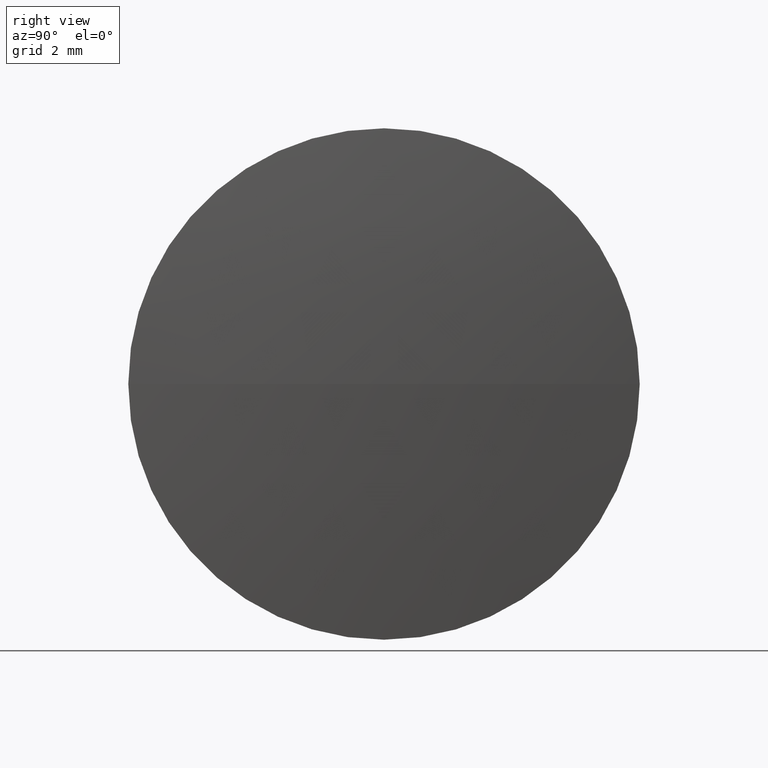
[diagram: clean part render]
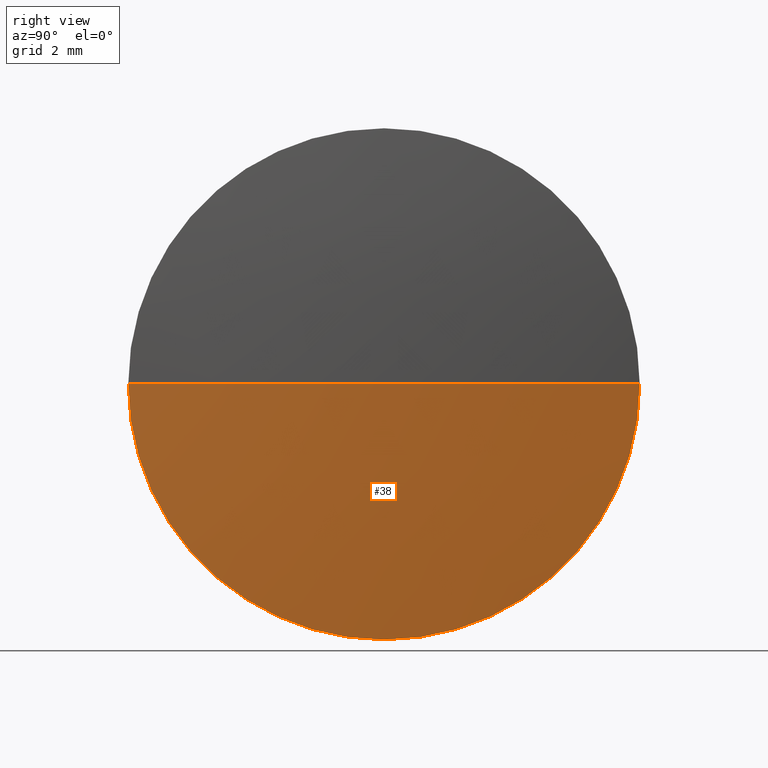
[diagram: same view with one face highlighted and labeled with its STEP entity id]
A machine part, right view. The second image highlights one B-rep face of the part: STEP entity #38.
In plain terms, the highlighted spherical surface has radius 57.8123 mm.
Its self-contained STEP definition (entity closure, byte-faithful):
#20 = DIRECTION ( 'NONE',  ( 0.0000000000000000000, -1.000000000000000000, -1.224646799147353200E-016 ) ) ;
#21 = EDGE_LOOP ( 'NONE', ( #318, #22, #279, #130 ) ) ;
#22 = ORIENTED_EDGE ( 'NONE', *, *, #209, .T. ) ;
#38 = ADVANCED_FACE ( 'NONE', ( #242 ), #89, .T. ) ;
#40 = CARTESIAN_POINT ( 'NONE',  ( 44.22913117304555200, 17.95805651159243500, 0.0000000000000000000 ) ) ;
#46 = CARTESIAN_POINT ( 'NONE',  ( -13.23341981687683600, 24.30805651159243300, 0.0000000000000000000 ) ) ;
#50 = VERTEX_POINT ( 'NONE', #321 ) ;
#68 = DIRECTION ( 'NONE',  ( -1.000000000000000000, 0.0000000000000000000, 0.0000000000000000000 ) ) ;
#86 = CARTESIAN_POINT ( 'NONE',  ( 44.22913117304555200, 24.30805651159239000, 0.0000000000000000000 ) ) ;
#89 = SPHERICAL_SURFACE ( 'NONE', #299, 57.81234527563668000 ) ;
#91 = CARTESIAN_POINT ( 'NONE',  ( 44.22913117304555200, 24.30805651159239000, 0.0000000000000000000 ) ) ;
#93 = DIRECTION ( 'NONE',  ( 0.0000000000000000000, -1.224646799147353200E-016, 1.000000000000000000 ) ) ;
#117 = EDGE_CURVE ( 'NONE', #50, #232, #177, .T. ) ;
#119 = VERTEX_POINT ( 'NONE', #340 ) ;
#123 = DIRECTION ( 'NONE',  ( -1.000000000000000000, -0.0000000000000000000, -0.0000000000000000000 ) ) ;
#130 = ORIENTED_EDGE ( 'NONE', *, *, #117, .F. ) ;
#133 = CIRCLE ( 'NONE', #196, 6.349999999999997900 ) ;
#145 = DIRECTION ( 'NONE',  ( -1.000000000000000000, -0.0000000000000000000, -0.0000000000000000000 ) ) ;
#148 = CIRCLE ( 'NONE', #162, 57.81234527563668000 ) ;
#152 = CARTESIAN_POINT ( 'NONE',  ( -13.23341981687683600, 24.30805651159243300, 0.0000000000000000000 ) ) ;
#162 = AXIS2_PLACEMENT_3D ( 'NONE', #152, #93, #20 ) ;
#163 = DIRECTION ( 'NONE',  ( 0.0000000000000000000, -1.000000000000000000, 0.0000000000000000000 ) ) ;
#177 = CIRCLE ( 'NONE', #295, 6.349999999999997900 ) ;
#182 = DIRECTION ( 'NONE',  ( 0.0000000000000000000, 0.0000000000000000000, 1.000000000000000000 ) ) ;
#196 = AXIS2_PLACEMENT_3D ( 'NONE', #86, #145, #278 ) ;
#209 = EDGE_CURVE ( 'NONE', #119, #326, #266, .T. ) ;
#219 = EDGE_CURVE ( 'NONE', #119, #50, #148, .T. ) ;
#232 = VERTEX_POINT ( 'NONE', #341 ) ;
#242 = FACE_OUTER_BOUND ( 'NONE', #21, .T. ) ;
#247 = EDGE_CURVE ( 'NONE', #232, #326, #133, .T. ) ;
#266 = CIRCLE ( 'NONE', #325, 57.81234527563668000 ) ;
#278 = DIRECTION ( 'NONE',  ( 0.0000000000000000000, 0.0000000000000000000, 1.000000000000000000 ) ) ;
#279 = ORIENTED_EDGE ( 'NONE', *, *, #247, .F. ) ;
#291 = CARTESIAN_POINT ( 'NONE',  ( -13.23341981687683600, 24.30805651159243300, 0.0000000000000000000 ) ) ;
#295 = AXIS2_PLACEMENT_3D ( 'NONE', #91, #123, #182 ) ;
#299 = AXIS2_PLACEMENT_3D ( 'NONE', #291, #322, #163 ) ;
#310 = DIRECTION ( 'NONE',  ( 0.0000000000000000000, 0.0000000000000000000, -1.000000000000000000 ) ) ;
#318 = ORIENTED_EDGE ( 'NONE', *, *, #219, .F. ) ;
#321 = CARTESIAN_POINT ( 'NONE',  ( 44.22913117304555200, 30.65805651159238800, 7.776507174585642900E-016 ) ) ;
#322 = DIRECTION ( 'NONE',  ( 0.0000000000000000000, 0.0000000000000000000, 1.000000000000000000 ) ) ;
#325 = AXIS2_PLACEMENT_3D ( 'NONE', #46, #310, #68 ) ;
#326 = VERTEX_POINT ( 'NONE', #40 ) ;
#340 = CARTESIAN_POINT ( 'NONE',  ( 44.57892545875984100, 24.30805651159242900, 0.0000000000000000000 ) ) ;
#341 = CARTESIAN_POINT ( 'NONE',  ( 44.22913117304555200, 24.30805651159239000, -6.349999999999997900 ) ) ;